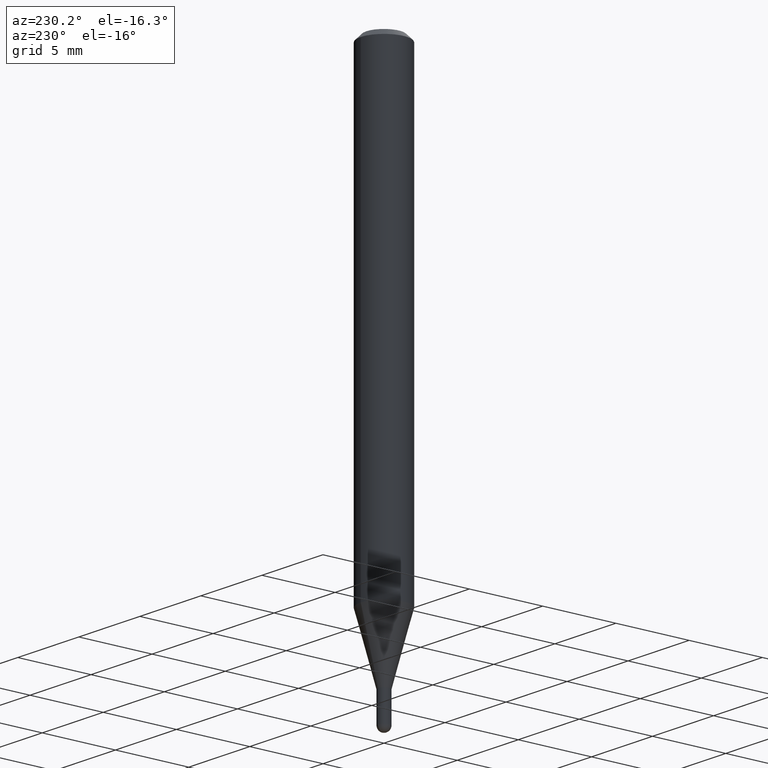
[diagram: clean part render]
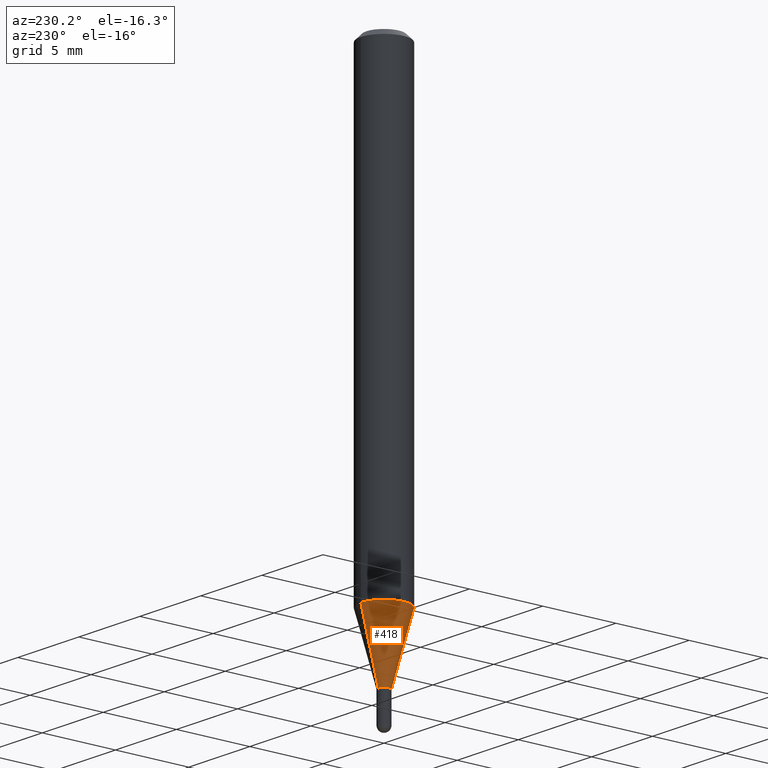
[diagram: same view with one face highlighted and labeled with its STEP entity id]
A machine part, auxiliary view. The second image highlights one B-rep face of the part: STEP entity #418.
In plain terms, the highlighted conical surface has half-angle 15 deg.
Its self-contained STEP definition (entity closure, byte-faithful):
#27 = ORIENTED_EDGE ( 'NONE', *, *, #94, .F. ) ;
#37 = LINE ( 'NONE', #120, #142 ) ;
#38 = CARTESIAN_POINT ( 'NONE',  ( 4.440892098500924943E-16, 0.06249999999999567707, -1.231593612044269426 ) ) ;
#68 = EDGE_CURVE ( 'NONE', #480, #490, #37, .T. ) ;
#94 = EDGE_CURVE ( 'NONE', #207, #268, #168, .T. ) ;
#117 = FACE_OUTER_BOUND ( 'NONE', #176, .T. ) ;
#120 = CARTESIAN_POINT ( 'NONE',  ( -1.082359215041040950E-16, -0.01550000000000511038, -1.407000000000000028 ) ) ;
#124 = DIRECTION ( 'NONE',  ( -6.982962677686266711E-15, -1.000000000000000000, 0.000000000000000000 ) ) ;
#142 = VECTOR ( 'NONE', #465, 39.37007874015748854 ) ;
#143 = AXIS2_PLACEMENT_3D ( 'NONE', #381, #374, #179 ) ;
#168 = LINE ( 'NONE', #324, #392 ) ;
#176 = EDGE_LOOP ( 'NONE', ( #27, #211, #376, #235 ) ) ;
#179 = DIRECTION ( 'NONE',  ( -6.982962677686265922E-15, -1.000000000000000000, 4.370956789862821150E-15 ) ) ;
#193 = CARTESIAN_POINT ( 'NONE',  ( 3.440781733066077319E-29, -4.912504043549441891E-15, -1.407000000000000028 ) ) ;
#207 = VERTEX_POINT ( 'NONE', #413 ) ;
#211 = ORIENTED_EDGE ( 'NONE', *, *, #481, .T. ) ;
#230 = CONICAL_SURFACE ( 'NONE', #444, 0.01550000000000019765, 0.2617993877991574569 ) ;
#234 = CARTESIAN_POINT ( 'NONE',  ( -4.364351673553616434E-16, -0.06250000000000431599, -1.231593612044268982 ) ) ;
#235 = ORIENTED_EDGE ( 'NONE', *, *, #304, .F. ) ;
#268 = VERTEX_POINT ( 'NONE', #38 ) ;
#275 = AXIS2_PLACEMENT_3D ( 'NONE', #193, #327, #496 ) ;
#280 = CARTESIAN_POINT ( 'NONE',  ( 3.440781733066077319E-29, -4.912504043549441891E-15, -1.407000000000000028 ) ) ;
#304 = EDGE_CURVE ( 'NONE', #268, #490, #461, .T. ) ;
#324 = CARTESIAN_POINT ( 'NONE',  ( 1.101341240428513349E-16, 0.01549999999999528491, -1.407000000000000028 ) ) ;
#327 = DIRECTION ( 'NONE',  ( -2.445473868561533157E-29, 3.491474089232013110E-15, 1.000000000000000000 ) ) ;
#374 = DIRECTION ( 'NONE',  ( -2.445473868561533157E-29, 3.491474089232013110E-15, 1.000000000000000000 ) ) ;
#376 = ORIENTED_EDGE ( 'NONE', *, *, #68, .T. ) ;
#381 = CARTESIAN_POINT ( 'NONE',  ( 3.011829994941570979E-29, -4.300077184916230038E-15, -1.231593612044269204 ) ) ;
#392 = VECTOR ( 'NONE', #463, 39.37007874015748143 ) ;
#396 = CARTESIAN_POINT ( 'NONE',  ( -1.082359215041040950E-16, -0.01550000000000511038, -1.407000000000000028 ) ) ;
#413 = CARTESIAN_POINT ( 'NONE',  ( 2.771116669464721549E-16, 0.01549999999999528491, -1.407000000000000028 ) ) ;
#418 = ADVANCED_FACE ( 'NONE', ( #117 ), #230, .T. ) ;
#444 = AXIS2_PLACEMENT_3D ( 'NONE', #280, #508, #124 ) ;
#461 = CIRCLE ( 'NONE', #143, 0.06250000000000000000 ) ;
#463 = DIRECTION ( 'NONE',  ( 1.839019923739649619E-15, 0.2588190451025318972, 0.9659258262890653146 ) ) ;
#465 = DIRECTION ( 'NONE',  ( -1.807323732225378654E-15, -0.2588190451025251249, 0.9659258262890670910 ) ) ;
#480 = VERTEX_POINT ( 'NONE', #396 ) ;
#481 = EDGE_CURVE ( 'NONE', #207, #480, #487, .T. ) ;
#487 = CIRCLE ( 'NONE', #275, 0.01550000000000019765 ) ;
#490 = VERTEX_POINT ( 'NONE', #234 ) ;
#496 = DIRECTION ( 'NONE',  ( -6.982962677686266711E-15, -1.000000000000000000, 0.000000000000000000 ) ) ;
#508 = DIRECTION ( 'NONE',  ( -2.445473868561533157E-29, 3.491474089232013110E-15, 1.000000000000000000 ) ) ;